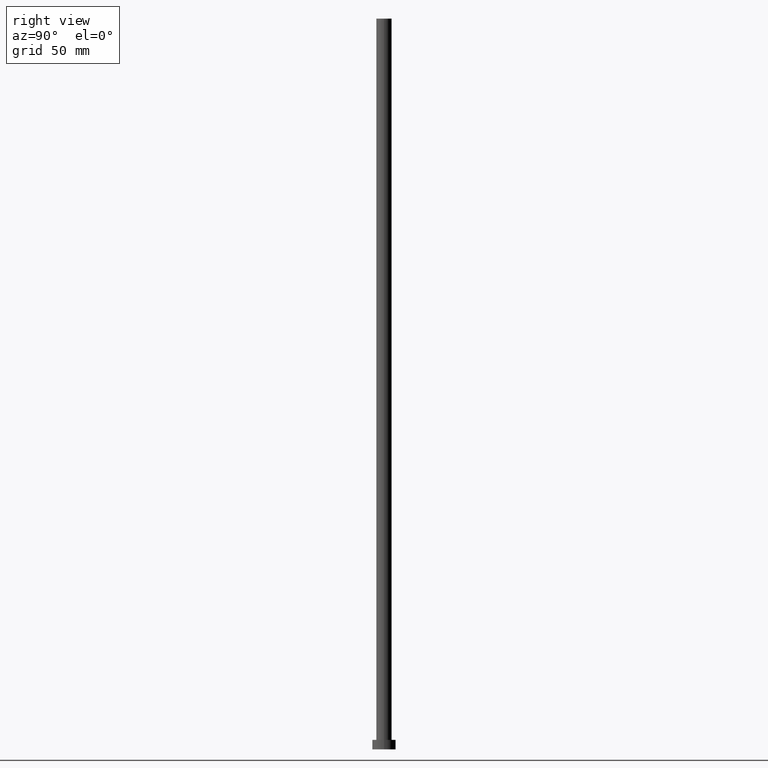
[diagram: clean part render]
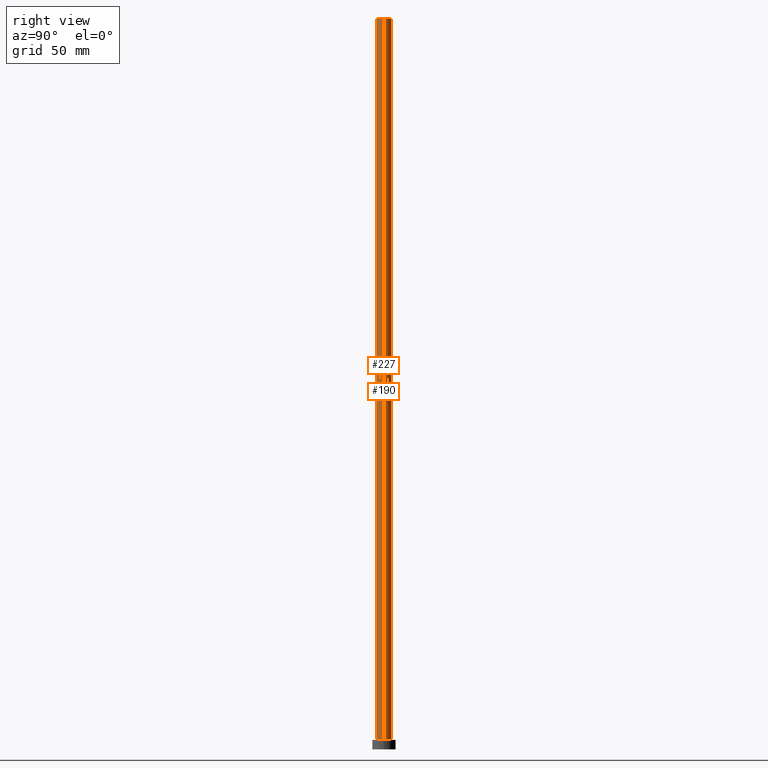
[diagram: same view with one multi-face feature highlighted, each face labeled with its STEP entity id]
A machine part, right view. The highlighted faces form ONE feature: a constant-radius fillet chain: 2 tangent blend faces with common blend radius 5.25 mm. The faces share edges in the B-rep.
Their STEP definitions:
[1] entity #190 (Cylinder):
#6 = CARTESIAN_POINT ( 'NONE',  ( -5.250000000000000888, 0.000000000000000000, 500.0000000000000000 ) ) ;
#24 = AXIS2_PLACEMENT_3D ( 'NONE', #82, #220, #41 ) ;
#33 = CARTESIAN_POINT ( 'NONE',  ( 5.250000000000000888, 6.429395695523605139E-16, 500.0000000000000000 ) ) ;
#36 = AXIS2_PLACEMENT_3D ( 'NONE', #51, #215, #197 ) ;
#41 = DIRECTION ( 'NONE',  ( -1.000000000000000000, 0.000000000000000000, 0.000000000000000000 ) ) ;
#46 = DIRECTION ( 'NONE',  ( 0.000000000000000000, 0.000000000000000000, 1.000000000000000000 ) ) ;
#51 = CARTESIAN_POINT ( 'NONE',  ( 0.000000000000000000, 0.000000000000000000, 500.0000000000000000 ) ) ;
#57 = VECTOR ( 'NONE', #202, 1000.000000000000000 ) ;
#59 = CARTESIAN_POINT ( 'NONE',  ( 5.250000000000000888, 6.429395695523605139E-16, 6.500000000000000000 ) ) ;
#61 = ORIENTED_EDGE ( 'NONE', *, *, #241, .T. ) ;
#67 = CARTESIAN_POINT ( 'NONE',  ( 0.000000000000000000, 0.000000000000000000, 6.500000000000000000 ) ) ;
#78 = ORIENTED_EDGE ( 'NONE', *, *, #164, .F. ) ;
#82 = CARTESIAN_POINT ( 'NONE',  ( 0.000000000000000000, 0.000000000000000000, 500.0000000000000000 ) ) ;
#94 = LINE ( 'NONE', #33, #167 ) ;
#115 = VERTEX_POINT ( 'NONE', #146 ) ;
#120 = ORIENTED_EDGE ( 'NONE', *, *, #126, .T. ) ;
#122 = CARTESIAN_POINT ( 'NONE',  ( -5.250000000000000888, 0.000000000000000000, 6.500000000000000000 ) ) ;
#126 = EDGE_CURVE ( 'NONE', #204, #135, #223, .T. ) ;
#127 = DIRECTION ( 'NONE',  ( 1.000000000000000000, 0.000000000000000000, 0.000000000000000000 ) ) ;
#135 = VERTEX_POINT ( 'NONE', #122 ) ;
#146 = CARTESIAN_POINT ( 'NONE',  ( -5.250000000000000888, 0.000000000000000000, 500.0000000000000000 ) ) ;
#151 = CIRCLE ( 'NONE', #36, 5.250000000000000888 ) ;
#152 = CARTESIAN_POINT ( 'NONE',  ( 5.250000000000000888, 6.429395695523605139E-16, 500.0000000000000000 ) ) ;
#156 = ORIENTED_EDGE ( 'NONE', *, *, #252, .F. ) ;
#162 = VERTEX_POINT ( 'NONE', #152 ) ;
#164 = EDGE_CURVE ( 'NONE', #162, #115, #151, .T. ) ;
#167 = VECTOR ( 'NONE', #195, 1000.000000000000000 ) ;
#172 = FACE_OUTER_BOUND ( 'NONE', #206, .T. ) ;
#190 = ADVANCED_FACE ( 'NONE', ( #172 ), #240, .T. ) ;
#195 = DIRECTION ( 'NONE',  ( -0.000000000000000000, -0.000000000000000000, -1.000000000000000000 ) ) ;
#197 = DIRECTION ( 'NONE',  ( 1.000000000000000000, 0.000000000000000000, 0.000000000000000000 ) ) ;
#202 = DIRECTION ( 'NONE',  ( -0.000000000000000000, -0.000000000000000000, -1.000000000000000000 ) ) ;
#204 = VERTEX_POINT ( 'NONE', #59 ) ;
#205 = LINE ( 'NONE', #6, #57 ) ;
#206 = EDGE_LOOP ( 'NONE', ( #78, #61, #120, #156 ) ) ;
#215 = DIRECTION ( 'NONE',  ( 0.000000000000000000, 0.000000000000000000, 1.000000000000000000 ) ) ;
#220 = DIRECTION ( 'NONE',  ( -0.000000000000000000, -0.000000000000000000, -1.000000000000000000 ) ) ;
#223 = CIRCLE ( 'NONE', #254, 5.250000000000000888 ) ;
#240 = CYLINDRICAL_SURFACE ( 'NONE', #24, 5.250000000000000888 ) ;
#241 = EDGE_CURVE ( 'NONE', #162, #204, #94, .T. ) ;
#252 = EDGE_CURVE ( 'NONE', #115, #135, #205, .T. ) ;
#254 = AXIS2_PLACEMENT_3D ( 'NONE', #67, #46, #127 ) ;
[2] entity #227 (Cylinder):
#6 = CARTESIAN_POINT ( 'NONE',  ( -5.250000000000000888, 0.000000000000000000, 500.0000000000000000 ) ) ;
#17 = FACE_OUTER_BOUND ( 'NONE', #117, .T. ) ;
#18 = AXIS2_PLACEMENT_3D ( 'NONE', #132, #218, #158 ) ;
#20 = AXIS2_PLACEMENT_3D ( 'NONE', #111, #196, #201 ) ;
#22 = ORIENTED_EDGE ( 'NONE', *, *, #252, .T. ) ;
#33 = CARTESIAN_POINT ( 'NONE',  ( 5.250000000000000888, 6.429395695523605139E-16, 500.0000000000000000 ) ) ;
#52 = CARTESIAN_POINT ( 'NONE',  ( 0.000000000000000000, 0.000000000000000000, 6.500000000000000000 ) ) ;
#57 = VECTOR ( 'NONE', #202, 1000.000000000000000 ) ;
#59 = CARTESIAN_POINT ( 'NONE',  ( 5.250000000000000888, 6.429395695523605139E-16, 6.500000000000000000 ) ) ;
#91 = DIRECTION ( 'NONE',  ( 1.000000000000000000, 0.000000000000000000, 0.000000000000000000 ) ) ;
#94 = LINE ( 'NONE', #33, #167 ) ;
#97 = ORIENTED_EDGE ( 'NONE', *, *, #199, .F. ) ;
#98 = ORIENTED_EDGE ( 'NONE', *, *, #219, .T. ) ;
#111 = CARTESIAN_POINT ( 'NONE',  ( 0.000000000000000000, 0.000000000000000000, 500.0000000000000000 ) ) ;
#114 = AXIS2_PLACEMENT_3D ( 'NONE', #52, #129, #91 ) ;
#115 = VERTEX_POINT ( 'NONE', #146 ) ;
#117 = EDGE_LOOP ( 'NONE', ( #183, #97, #22, #98 ) ) ;
#122 = CARTESIAN_POINT ( 'NONE',  ( -5.250000000000000888, 0.000000000000000000, 6.500000000000000000 ) ) ;
#129 = DIRECTION ( 'NONE',  ( 0.000000000000000000, 0.000000000000000000, 1.000000000000000000 ) ) ;
#132 = CARTESIAN_POINT ( 'NONE',  ( 0.000000000000000000, 0.000000000000000000, 500.0000000000000000 ) ) ;
#135 = VERTEX_POINT ( 'NONE', #122 ) ;
#137 = CIRCLE ( 'NONE', #20, 5.250000000000000888 ) ;
#146 = CARTESIAN_POINT ( 'NONE',  ( -5.250000000000000888, 0.000000000000000000, 500.0000000000000000 ) ) ;
#152 = CARTESIAN_POINT ( 'NONE',  ( 5.250000000000000888, 6.429395695523605139E-16, 500.0000000000000000 ) ) ;
#158 = DIRECTION ( 'NONE',  ( -1.000000000000000000, 0.000000000000000000, 0.000000000000000000 ) ) ;
#159 = CIRCLE ( 'NONE', #114, 5.250000000000000888 ) ;
#162 = VERTEX_POINT ( 'NONE', #152 ) ;
#167 = VECTOR ( 'NONE', #195, 1000.000000000000000 ) ;
#183 = ORIENTED_EDGE ( 'NONE', *, *, #241, .F. ) ;
#195 = DIRECTION ( 'NONE',  ( -0.000000000000000000, -0.000000000000000000, -1.000000000000000000 ) ) ;
#196 = DIRECTION ( 'NONE',  ( 0.000000000000000000, 0.000000000000000000, 1.000000000000000000 ) ) ;
#199 = EDGE_CURVE ( 'NONE', #115, #162, #137, .T. ) ;
#201 = DIRECTION ( 'NONE',  ( 1.000000000000000000, 0.000000000000000000, 0.000000000000000000 ) ) ;
#202 = DIRECTION ( 'NONE',  ( -0.000000000000000000, -0.000000000000000000, -1.000000000000000000 ) ) ;
#204 = VERTEX_POINT ( 'NONE', #59 ) ;
#205 = LINE ( 'NONE', #6, #57 ) ;
#218 = DIRECTION ( 'NONE',  ( -0.000000000000000000, -0.000000000000000000, -1.000000000000000000 ) ) ;
#219 = EDGE_CURVE ( 'NONE', #135, #204, #159, .T. ) ;
#227 = ADVANCED_FACE ( 'NONE', ( #17 ), #239, .T. ) ;
#239 = CYLINDRICAL_SURFACE ( 'NONE', #18, 5.250000000000000888 ) ;
#241 = EDGE_CURVE ( 'NONE', #162, #204, #94, .T. ) ;
#252 = EDGE_CURVE ( 'NONE', #115, #135, #205, .T. ) ;